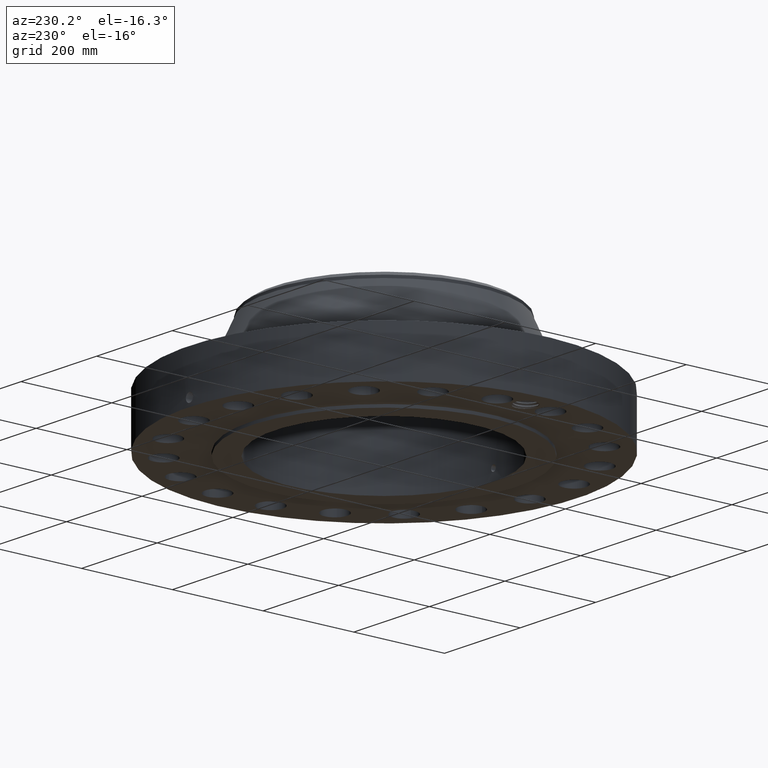
[diagram: clean part render]
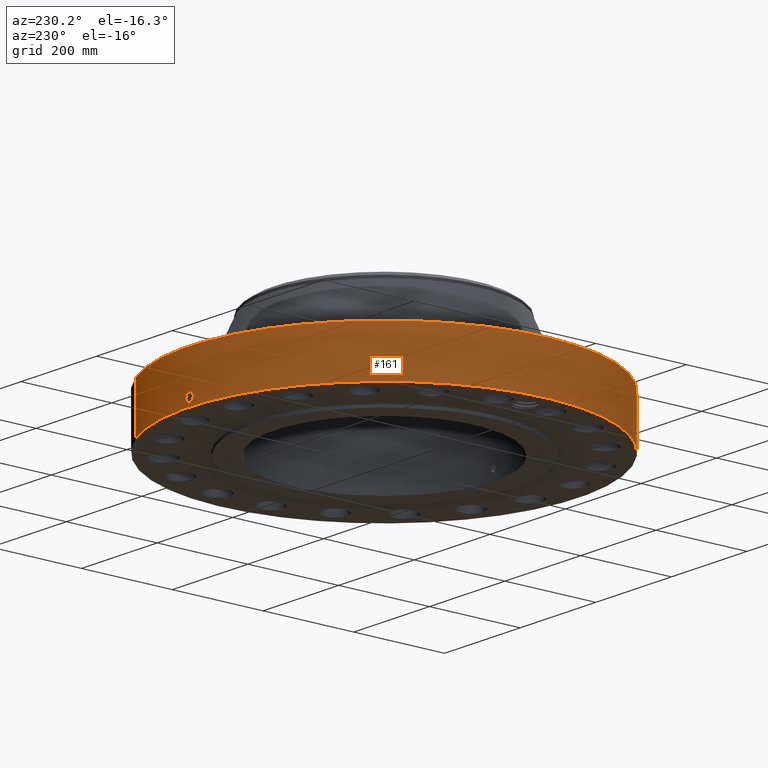
[diagram: same view with one face highlighted and labeled with its STEP entity id]
A machine part, auxiliary view. The second image highlights one B-rep face of the part: STEP entity #161.
In plain terms, the highlighted cylindrical surface (partial cylindrical patch) has radius 428.625 mm, axis along (0, 0, -1).
Its self-contained STEP definition (entity closure, byte-faithful):
#38=AXIS2_PLACEMENT_3D('Cylinder Axis2P3D',#35,#36,#37) ;
#42=AXIS2_PLACEMENT_3D('Circle Axis2P3D',#40,#41,$) ;
#58=AXIS2_PLACEMENT_3D('Circle Axis2P3D',#56,#57,$) ;
#35=CARTESIAN_POINT('Axis2P3D Location',(0.,0.,5.00000000002)) ;
#40=CARTESIAN_POINT('Axis2P3D Location',(0.,0.,0.250000000001)) ;
#44=CARTESIAN_POINT('Vertex',(-8.09030596398,-14.809205732,0.250000000001)) ;
#46=CARTESIAN_POINT('Vertex',(8.09030596398,14.809205732,0.250000000001)) ;
#49=CARTESIAN_POINT('Line Origine',(-8.09030596398,-14.809205732,2.37500000001)) ;
#53=CARTESIAN_POINT('Vertex',(-8.09030596398,-14.809205732,4.50000000002)) ;
#56=CARTESIAN_POINT('Axis2P3D Location',(0.,0.,4.50000000002)) ;
#60=CARTESIAN_POINT('Vertex',(8.09030596398,14.809205732,4.50000000002)) ;
#63=CARTESIAN_POINT('Line Origine',(8.09030596398,14.809205732,2.37500000001)) ;
#75=CARTESIAN_POINT('Control Point',(-0.000715966350941,16.8749999849,1.2941184615)) ;
#76=CARTESIAN_POINT('Control Point',(-0.0188587449896,16.8749992151,1.29408182617)) ;
#77=CARTESIAN_POINT('Control Point',(-0.0369983738382,16.8749689585,1.29264716763)) ;
#78=CARTESIAN_POINT('Control Point',(-0.0549211481631,16.874910627,1.28983155179)) ;
#79=CARTESIAN_POINT('Vertex',(-0.000715647544343,16.8749999849,1.29411851071)) ;
#81=CARTESIAN_POINT('Vertex',(-0.0549124867546,16.8749109068,1.28983293024)) ;
#85=CARTESIAN_POINT('Control Point',(-0.0549123924265,16.8749106555,1.28983238615)) ;
#86=CARTESIAN_POINT('Control Point',(-0.0954921253364,16.8747786056,1.28546586304)) ;
#87=CARTESIAN_POINT('Control Point',(-0.135448629351,16.8744965787,1.27372463291)) ;
#88=CARTESIAN_POINT('Control Point',(-0.172272160945,16.874120638,1.25537261567)) ;
#89=CARTESIAN_POINT('Vertex',(-0.172272160945,16.874120638,1.25537261567)) ;
#93=CARTESIAN_POINT('Control Point',(-0.0311176967246,16.8749713093,0.531196981948)) ;
#94=CARTESIAN_POINT('Control Point',(-0.0716971628147,16.8748964802,0.536329675347)) ;
#95=CARTESIAN_POINT('Control Point',(-0.111483887554,16.874701135,0.546717742949)) ;
#96=CARTESIAN_POINT('Control Point',(-0.149542289853,16.8743962607,0.562204334577)) ;
#97=CARTESIAN_POINT('Control Point',(-0.239358933877,16.8734348165,0.613172299055)) ;
#98=CARTESIAN_POINT('Control Point',(-0.308457455012,16.8722463849,0.690007880858)) ;
#99=CARTESIAN_POINT('Control Point',(-0.340329822594,16.8715879855,0.743761261483)) ;
#100=CARTESIAN_POINT('Control Point',(-0.374944138479,16.8708389442,0.841073392981)) ;
#101=CARTESIAN_POINT('Control Point',(-0.377318743419,16.8707797936,0.942367080268)) ;
#102=CARTESIAN_POINT('Control Point',(-0.372953924759,16.870879792,0.98292589765)) ;
#103=CARTESIAN_POINT('Control Point',(-0.350404708164,16.871382695,1.07569920776)) ;
#104=CARTESIAN_POINT('Control Point',(-0.300669425321,16.8723616565,1.15725850942)) ;
#105=CARTESIAN_POINT('Control Point',(-0.263812673091,16.8730156963,1.19834070165)) ;
#106=CARTESIAN_POINT('Control Point',(-0.220228293553,16.8736310417,1.23147235779)) ;
#107=CARTESIAN_POINT('Control Point',(-0.172272160945,16.874120638,1.25537261567)) ;
#108=CARTESIAN_POINT('Vertex',(-0.0311176967246,16.8749713093,0.531196981948)) ;
#112=CARTESIAN_POINT('Control Point',(-0.0311176967246,16.8749713093,0.531196981948)) ;
#113=CARTESIAN_POINT('Control Point',(-0.0207404090337,16.8749904452,0.530875685859)) ;
#114=CARTESIAN_POINT('Control Point',(-0.0103551827877,16.8750000017,0.530935093628)) ;
#115=CARTESIAN_POINT('Control Point',(2.72878355189E-006,16.8750000001,0.531374667806)) ;
#116=CARTESIAN_POINT('Vertex',(2.72878354257E-006,16.8750000001,0.531374667806)) ;
#120=CARTESIAN_POINT('Control Point',(0.19254051346,16.8739015392,0.587568175017)) ;
#121=CARTESIAN_POINT('Control Point',(0.148973082284,16.8743986675,0.562131731108)) ;
#122=CARTESIAN_POINT('Control Point',(0.101110473938,16.8747954933,0.543811579037)) ;
#123=CARTESIAN_POINT('Control Point',(0.0508033336206,16.8749999919,0.533530568521)) ;
#124=CARTESIAN_POINT('Control Point',(2.72878355189E-006,16.8750000001,0.531374667806)) ;
#125=CARTESIAN_POINT('Vertex',(0.19254051346,16.8739015392,0.587568175017)) ;
#129=CARTESIAN_POINT('Control Point',(0.19254051346,16.8739015392,0.587568175017)) ;
#130=CARTESIAN_POINT('Control Point',(0.249309488363,16.8732537739,0.620712216443)) ;
#131=CARTESIAN_POINT('Control Point',(0.299262722599,16.8724450136,0.665183203358)) ;
#132=CARTESIAN_POINT('Control Point',(0.339248744879,16.8716253423,0.719381497319)) ;
#133=CARTESIAN_POINT('Control Point',(0.383251893465,16.8706561065,0.817654652239)) ;
#134=CARTESIAN_POINT('Control Point',(0.391654931455,16.8704531723,0.922932638552)) ;
#135=CARTESIAN_POINT('Control Point',(0.389478215865,16.8705050932,0.963131364792)) ;
#136=CARTESIAN_POINT('Control Point',(0.369875477616,16.8709644816,1.06613732627)) ;
#137=CARTESIAN_POINT('Control Point',(0.316342965285,16.8720886067,1.15688810316)) ;
#138=CARTESIAN_POINT('Control Point',(0.271808791443,16.8729258459,1.20451035153)) ;
#139=CARTESIAN_POINT('Control Point',(0.190945062117,16.874075654,1.26057047136)) ;
#140=CARTESIAN_POINT('Control Point',(0.098926665847,16.8747569291,1.28784304801)) ;
#141=CARTESIAN_POINT('Control Point',(0.0660321750364,16.8749199747,1.29367514866)) ;
#142=CARTESIAN_POINT('Control Point',(0.0328634725777,16.8750000504,1.2957655117)) ;
#143=CARTESIAN_POINT('Control Point',(-2.58579355701E-005,16.875,1.2941529843)) ;
#144=CARTESIAN_POINT('Vertex',(-2.58579355491E-005,16.875,1.2941529843)) ;
#148=CARTESIAN_POINT('Control Point',(-0.000715647534762,16.8749999849,1.29411851069)) ;
#149=CARTESIAN_POINT('Control Point',(-0.000370777338297,16.8749999995,1.29413607331)) ;
#150=CARTESIAN_POINT('Control Point',(-2.58579404822E-005,16.875,1.29415298429)) ;
#36=DIRECTION('Axis2P3D Direction',(0.,0.,-0.0393700787402)) ;
#37=DIRECTION('Axis2P3D XDirection',(0.0188750212049,0.0345504945626,0.)) ;
#41=DIRECTION('Axis2P3D Direction',(0.,0.,-0.0393700787402)) ;
#50=DIRECTION('Vector Direction',(0.,0.,-0.0393700787402)) ;
#57=DIRECTION('Axis2P3D Direction',(0.,0.,-0.0393700787402)) ;
#64=DIRECTION('Vector Direction',(0.,0.,-0.0393700787402)) ;
#51=VECTOR('Line Direction',#50,0.0393700787402) ;
#65=VECTOR('Line Direction',#64,0.0393700787402) ;
#69=ORIENTED_EDGE('',*,*,#48,.F.) ;
#70=ORIENTED_EDGE('',*,*,#55,.T.) ;
#71=ORIENTED_EDGE('',*,*,#62,.T.) ;
#72=ORIENTED_EDGE('',*,*,#67,.F.) ;
#153=ORIENTED_EDGE('',*,*,#83,.T.) ;
#154=ORIENTED_EDGE('',*,*,#91,.T.) ;
#155=ORIENTED_EDGE('',*,*,#110,.F.) ;
#156=ORIENTED_EDGE('',*,*,#118,.T.) ;
#157=ORIENTED_EDGE('',*,*,#127,.F.) ;
#158=ORIENTED_EDGE('',*,*,#146,.T.) ;
#159=ORIENTED_EDGE('',*,*,#151,.F.) ;
#160=FACE_BOUND('',#152,.T.) ;
#161=ADVANCED_FACE('PartBody',(#73,#160),#39,.T.) ;
#74=B_SPLINE_CURVE_WITH_KNOTS('',3,(#75,#76,#77,#78),.UNSPECIFIED.,.F.,.U.,(4,4),(34.6167109143,36.6294797143),.UNSPECIFIED.) ;
#84=B_SPLINE_CURVE_WITH_KNOTS('',3,(#85,#86,#87,#88),.UNSPECIFIED.,.F.,.U.,(4,4),(0.,4.58603306035),.UNSPECIFIED.) ;
#92=B_SPLINE_CURVE_WITH_KNOTS('',5,(#93,#94,#95,#96,#97,#98,#99,#100,#101,#102,#103,#104,#105,#106,#107),.UNSPECIFIED.,.F.,.U.,(6,3,3,3,6),(0.,7.10840572543,17.9965871477,25.3424692337,35.2966301643),.UNSPECIFIED.) ;
#111=B_SPLINE_CURVE_WITH_KNOTS('',3,(#112,#113,#114,#115),.UNSPECIFIED.,.F.,.U.,(4,4),(0.,1.08252290649),.UNSPECIFIED.) ;
#119=B_SPLINE_CURVE_WITH_KNOTS('',4,(#120,#121,#122,#123,#124),.UNSPECIFIED.,.F.,.U.,(5,5),(0.,7.0790098289),.UNSPECIFIED.) ;
#128=B_SPLINE_CURVE_WITH_KNOTS('',5,(#129,#130,#131,#132,#133,#134,#135,#136,#137,#138,#139,#140,#141,#142,#143),.UNSPECIFIED.,.F.,.U.,(6,3,3,3,6),(0.,11.5300613595,18.6226470716,30.1177972733,36.2654958703),.UNSPECIFIED.) ;
#147=B_SPLINE_CURVE_WITH_KNOTS('',2,(#148,#149,#150),.UNSPECIFIED.,.F.,.U.,(3,3),(1.01879612386,1.04458516299),.UNSPECIFIED.) ;
#43=CIRCLE('generated circle',#42,16.8750000001) ;
#59=CIRCLE('generated circle',#58,16.8750000001) ;
#39=CYLINDRICAL_SURFACE('generated cylinder',#38,16.8750000001) ;
#48=EDGE_CURVE('',#45,#47,#43,.T.) ;
#55=EDGE_CURVE('',#45,#54,#52,.F.) ;
#62=EDGE_CURVE('',#54,#61,#59,.T.) ;
#67=EDGE_CURVE('',#47,#61,#66,.F.) ;
#83=EDGE_CURVE('',#80,#82,#74,.T.) ;
#91=EDGE_CURVE('',#82,#90,#84,.T.) ;
#110=EDGE_CURVE('',#109,#90,#92,.T.) ;
#118=EDGE_CURVE('',#109,#117,#111,.T.) ;
#127=EDGE_CURVE('',#126,#117,#119,.T.) ;
#146=EDGE_CURVE('',#126,#145,#128,.T.) ;
#151=EDGE_CURVE('',#80,#145,#147,.T.) ;
#68=EDGE_LOOP('',(#69,#70,#71,#72)) ;
#152=EDGE_LOOP('',(#153,#154,#155,#156,#157,#158,#159)) ;
#73=FACE_OUTER_BOUND('',#68,.T.) ;
#52=LINE('Line',#49,#51) ;
#66=LINE('Line',#63,#65) ;
#45=VERTEX_POINT('',#44) ;
#47=VERTEX_POINT('',#46) ;
#54=VERTEX_POINT('',#53) ;
#61=VERTEX_POINT('',#60) ;
#80=VERTEX_POINT('',#79) ;
#82=VERTEX_POINT('',#81) ;
#90=VERTEX_POINT('',#89) ;
#109=VERTEX_POINT('',#108) ;
#117=VERTEX_POINT('',#116) ;
#126=VERTEX_POINT('',#125) ;
#145=VERTEX_POINT('',#144) ;